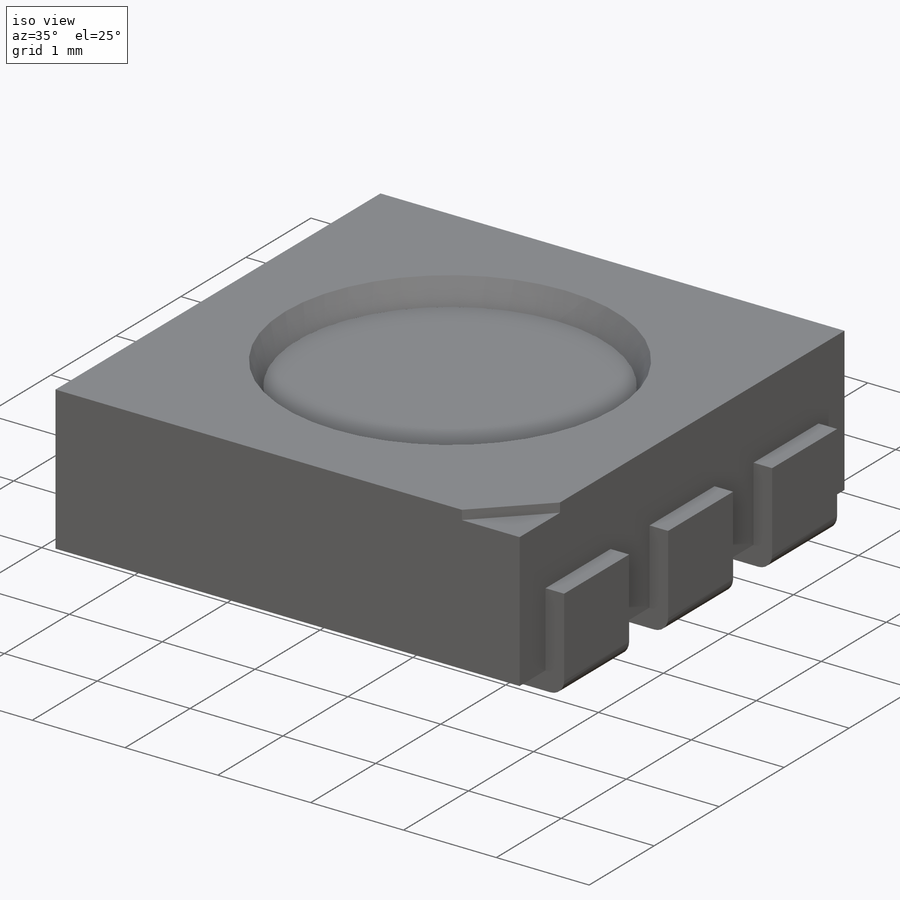
[diagram: iso view]
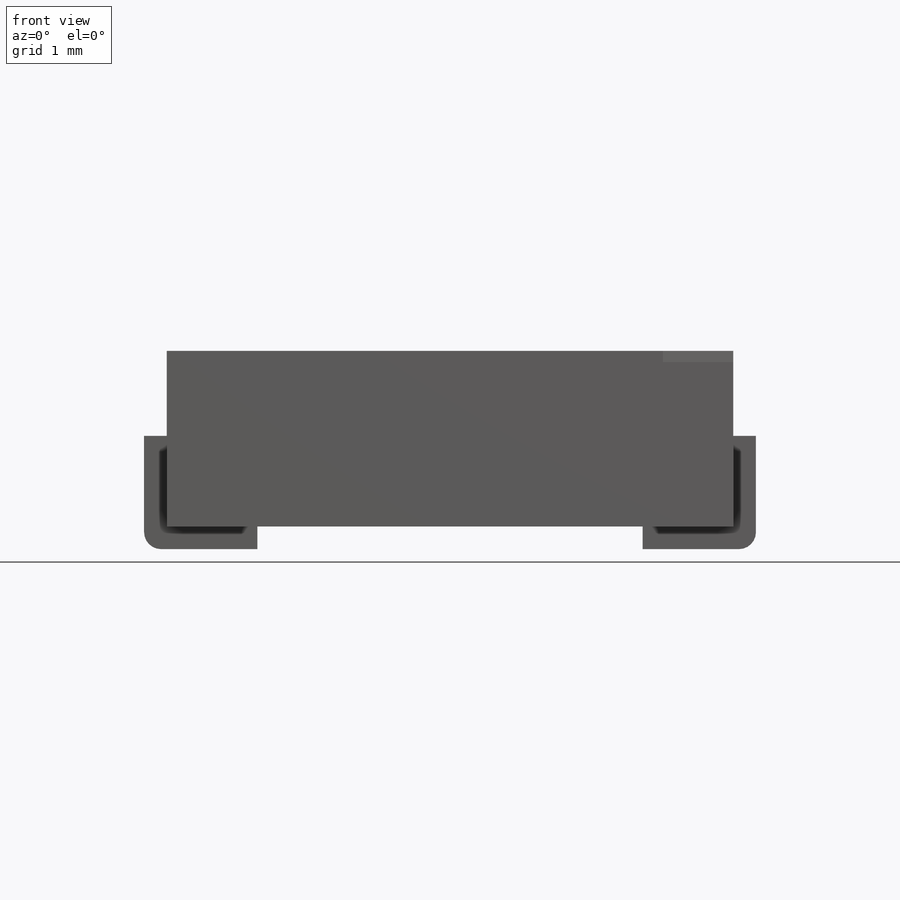
[diagram: front view]
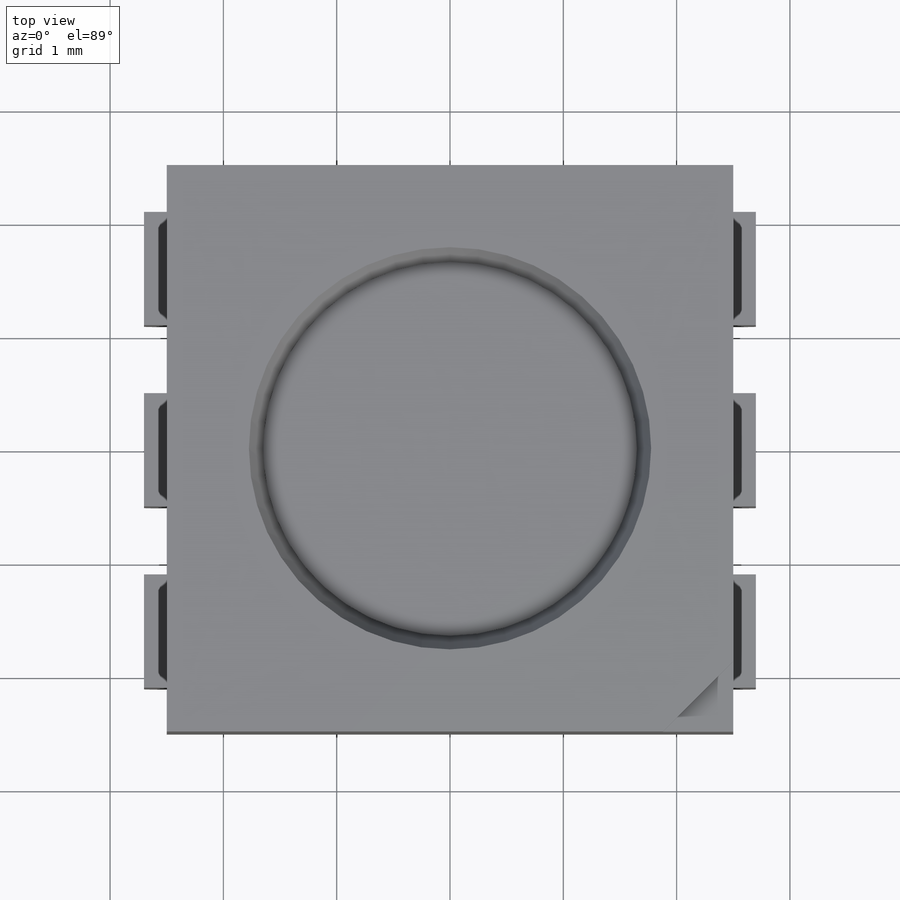
[diagram: top view]
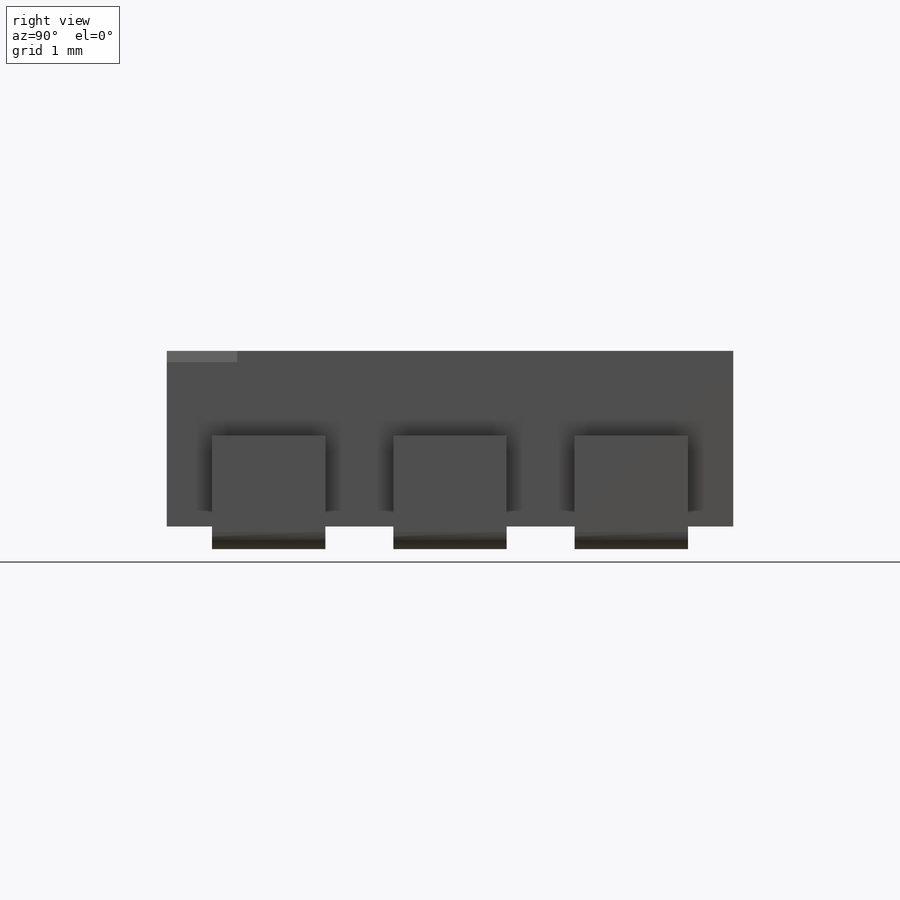
[diagram: right view]
SOLIDWORKS PART (.sldprt)
format: sldprt  version: not decoded by parser v0  size: 280,064 bytes
history: native  units: mm
features: sketch x7, extrude x3, material x1, hole x1, fillet x1, plane x1, mirror x1, cut_extrude x1 (+13 scaffold rows collapsed)
feature tree (29):
  scaffold x13  (default folders/planes/origin — collapsed)
  material  "Material <not specified>"
  sketch  "Sketch1"  dims[D1=5.0mm D2=5.0mm]
  extrude  "Boss-Extrude1"  Depth=1.55mm
  sketch  "Sketch2"  dims[D1=3.55mm]
  hole  "CSK SLOT for M2 Flat Head Machine Screw1"  Diameter=3.3mm Depth=0.25mm
  sketch  "Sketch4"  dims[D1=0.254mm]
  sketch  "Sketch5"  dims[hole-wizard template sketch: 39 standard entries collapsed; hole parameters kept: c13.Hole Dia.=3.3mm c13.Hole Depth=0.25mm c13.Near C'Sink Dia.=3.55mm c13.D4=~33.297463mm c13.Near C'Sink Angle=53.0deg c14.D5=~14.816244mm c14.Drill Angle=180.0deg]
  sketch  "Sketch6"  dims[c1.D1=0.4mm c1.D2=0.6mm c1.D3=0.6mm c1.D4=0.4mm c1.D5=1.0mm c1.D6=~0.897805mm c2.D4=0.8mm]
  extrude  "Boss-Extrude3"  Depth=0.2mm
  sketch  "Sketch7"  dims[c1.D1=1.0mm c1.D2=0.6mm c1.D3=0.6mm c1.D4=0.4mm c2.D1=1.0mm]
  extrude  "Boss-Extrude5"  Depth=0.2mm
  fillet  "Fillet1"  Radius=0.15mm
  plane  "Plane1"
  mirror  "Mirror1"
  sketch  "Sketch9"
  cut_extrude  "Cut-Extrude2"  Depth=0.1mm
decode coverage: 12 of 14 modeling features carry decoded parameters
note: ~ marks probable driven/reference dimensions
note: suppression state not decoded; provenance and decode notes live in map.json
